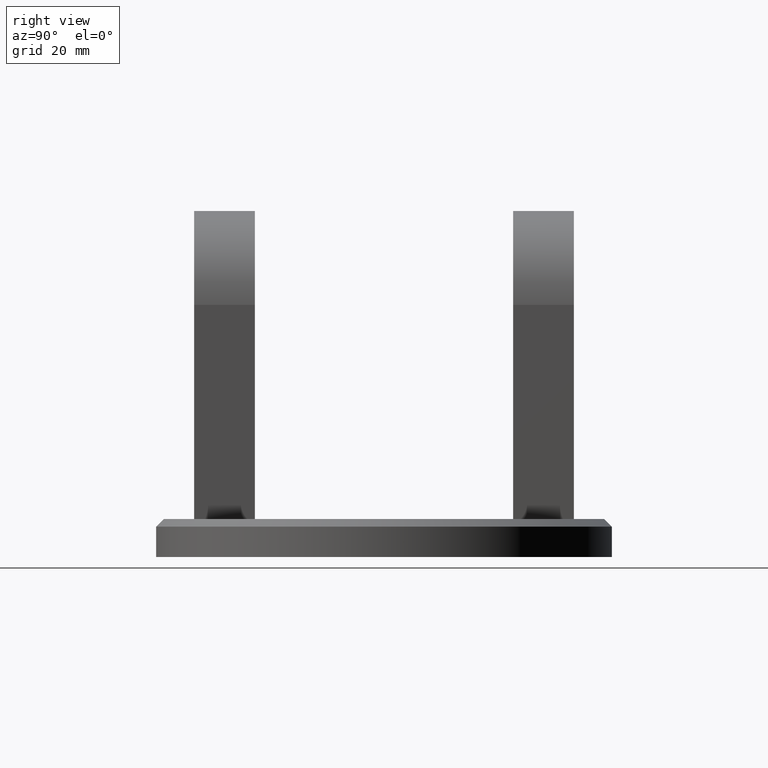
[diagram: clean part render]
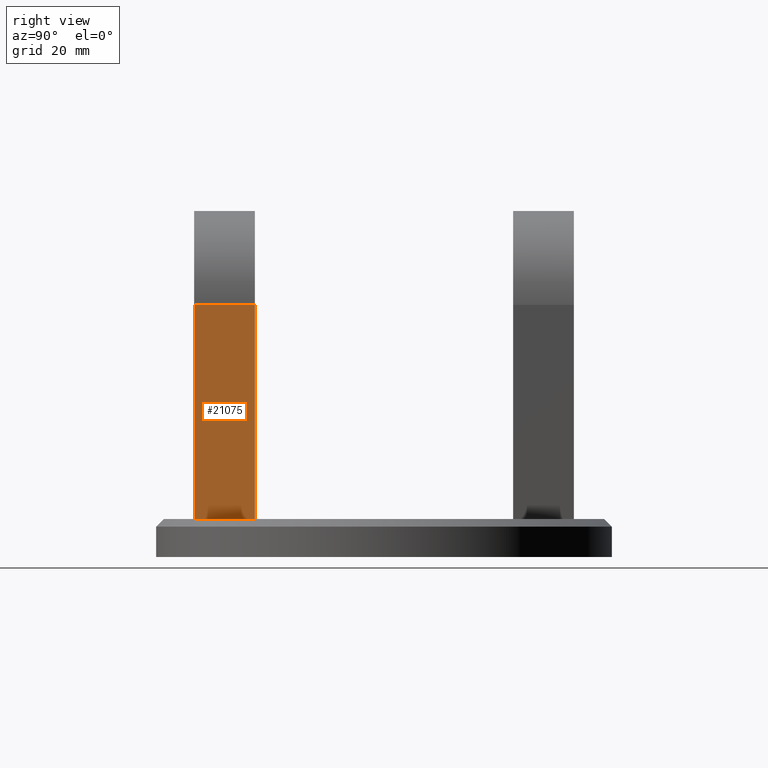
[diagram: same view with one face highlighted and labeled with its STEP entity id]
A machine part, right view. The second image highlights one B-rep face of the part: STEP entity #21075.
In plain terms, the highlighted planar face has unit normal (-1, 0, 0).
Its self-contained STEP definition (entity closure, byte-faithful):
#770 = CARTESIAN_POINT ( 'NONE',  ( 8.000000000000000000, 0.0000000000000000000, -24.89999999999998400 ) ) ;
#1146 = CARTESIAN_POINT ( 'NONE',  ( 8.000000000000000000, 0.0000000000000000000, -24.89999999999998400 ) ) ;
#1812 = LINE ( 'NONE', #1146, #18278 ) ;
#2528 = DIRECTION ( 'NONE',  ( -1.000000000000000000, 0.0000000000000000000, 0.0000000000000000000 ) ) ;
#2932 = VECTOR ( 'NONE', #4269, 1000.000000000000000 ) ;
#3082 = VECTOR ( 'NONE', #9029, 1000.000000000000000 ) ;
#3404 = VERTEX_POINT ( 'NONE', #22590 ) ;
#4269 = DIRECTION ( 'NONE',  ( 0.0000000000000000000, 1.000000000000000000, -1.230300337572202900E-016 ) ) ;
#5552 = PLANE ( 'NONE',  #13179 ) ;
#6160 = EDGE_LOOP ( 'NONE', ( #16009, #12007, #8974, #9830 ) ) ;
#6210 = EDGE_CURVE ( 'NONE', #21688, #12577, #1812, .T. ) ;
#6232 = LINE ( 'NONE', #770, #2932 ) ;
#7172 = DIRECTION ( 'NONE',  ( 0.0000000000000000000, 1.230300337572202900E-016, 1.000000000000000000 ) ) ;
#7250 = CARTESIAN_POINT ( 'NONE',  ( -8.000000000000000000, 0.0000000000000000000, -24.89999999999997700 ) ) ;
#7875 = DIRECTION ( 'NONE',  ( -1.000000000000000000, 0.0000000000000000000, 0.0000000000000000000 ) ) ;
#8294 = LINE ( 'NONE', #7250, #3082 ) ;
#8974 = ORIENTED_EDGE ( 'NONE', *, *, #18417, .F. ) ;
#9029 = DIRECTION ( 'NONE',  ( 0.0000000000000000000, 1.000000000000000000, -1.230300337572202900E-016 ) ) ;
#9830 = ORIENTED_EDGE ( 'NONE', *, *, #6210, .T. ) ;
#10690 = VECTOR ( 'NONE', #2528, 1000.000000000000000 ) ;
#11625 = CARTESIAN_POINT ( 'NONE',  ( 8.000000000000000000, 0.0000000000000000000, -24.89999999999998400 ) ) ;
#11906 = CARTESIAN_POINT ( 'NONE',  ( -8.000000000000000000, 0.0000000000000000000, -24.89999999999997700 ) ) ;
#12007 = ORIENTED_EDGE ( 'NONE', *, *, #17089, .F. ) ;
#12065 = VERTEX_POINT ( 'NONE', #12996 ) ;
#12577 = VERTEX_POINT ( 'NONE', #11906 ) ;
#12996 = CARTESIAN_POINT ( 'NONE',  ( -8.000000000000000000, 56.39999999999998400, -24.89999999999998400 ) ) ;
#13179 = AXIS2_PLACEMENT_3D ( 'NONE', #14387, #7172, #14086 ) ;
#13700 = LINE ( 'NONE', #21825, #10690 ) ;
#14086 = DIRECTION ( 'NONE',  ( 0.0000000000000000000, -1.000000000000000000, 1.230300337572202900E-016 ) ) ;
#14387 = CARTESIAN_POINT ( 'NONE',  ( 8.000000000000000000, 0.0000000000000000000, -24.89999999999998400 ) ) ;
#14768 = EDGE_CURVE ( 'NONE', #12577, #12065, #8294, .T. ) ;
#16009 = ORIENTED_EDGE ( 'NONE', *, *, #14768, .T. ) ;
#17089 = EDGE_CURVE ( 'NONE', #3404, #12065, #13700, .T. ) ;
#18278 = VECTOR ( 'NONE', #7875, 1000.000000000000000 ) ;
#18417 = EDGE_CURVE ( 'NONE', #21688, #3404, #6232, .T. ) ;
#20430 = FACE_OUTER_BOUND ( 'NONE', #6160, .T. ) ;
#21075 = ADVANCED_FACE ( 'NONE', ( #20430 ), #5552, .F. ) ;
#21688 = VERTEX_POINT ( 'NONE', #11625 ) ;
#21825 = CARTESIAN_POINT ( 'NONE',  ( 8.000000000000000000, 56.39999999999998400, -24.89999999999999100 ) ) ;
#22590 = CARTESIAN_POINT ( 'NONE',  ( 8.000000000000000000, 56.39999999999998400, -24.89999999999999100 ) ) ;